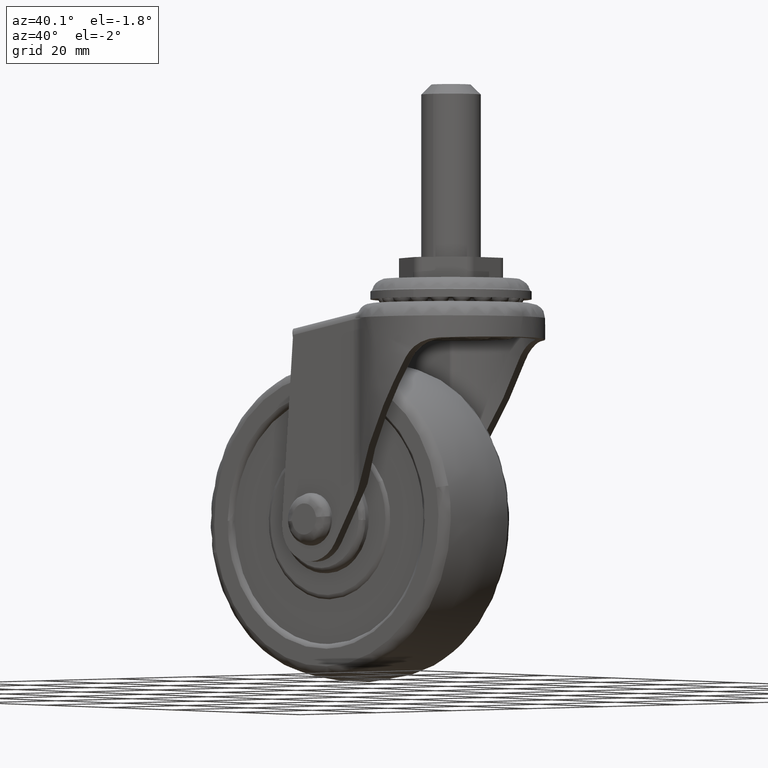
[diagram: clean part render]
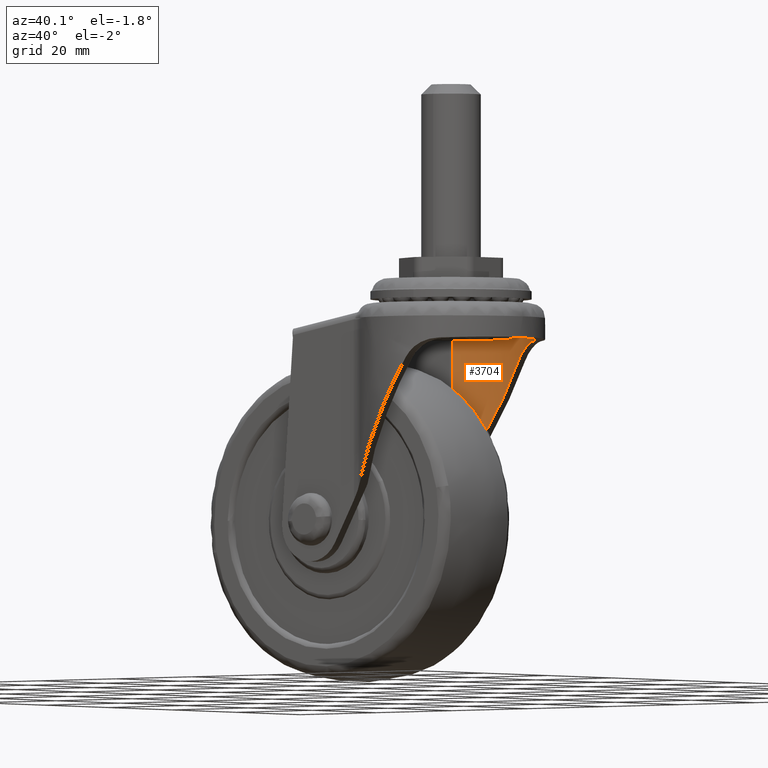
[diagram: same view with one face highlighted and labeled with its STEP entity id]
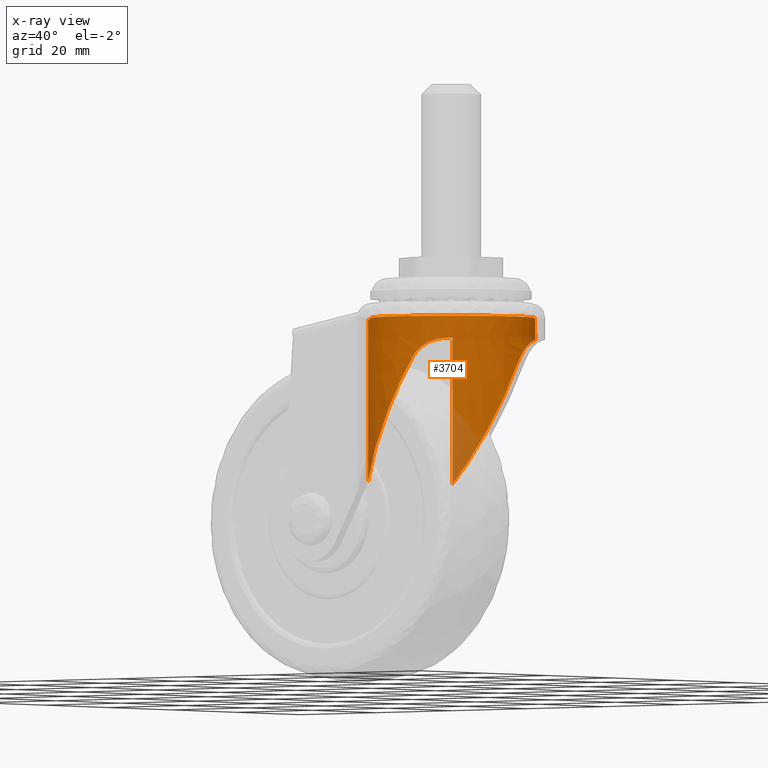
[diagram: x-ray of the same camera — body ghosted, the highlighted face saturated]
A machine part, auxiliary view. The second image highlights one B-rep face of the part: STEP entity #3704.
The next image is the same camera in x-ray: the body ghosted, the highlighted face saturated — about 9% of this face is hidden behind the body in this view.
In plain terms, the highlighted face is a freeform B-spline surface patch.
Its self-contained STEP definition (entity closure, byte-faithful):
#2291=CARTESIAN_POINT('',(15.783267568592700,-14.882382475620609,40.400002999999998));
#2292=VERTEX_POINT('',#2291);
#2323=CARTESIAN_POINT('',(40.998657751464712,-0.213622678029677,40.400003000654969));
#2324=VERTEX_POINT('',#2323);
#2338=CARTESIAN_POINT('',(40.998657751464712,-0.213622678029677,40.400003000654969));
#2339=CARTESIAN_POINT('',(40.985591467997722,-1.263695725326801,40.400003000642883));
#2340=CARTESIAN_POINT('',(40.821629055391050,-2.814096305306149,40.400003000622142));
#2341=CARTESIAN_POINT('',(40.229731342171377,-5.210059424436341,40.400003000583638));
#2342=CARTESIAN_POINT('',(39.440617197878012,-7.262308767320838,40.400003000545198));
#2343=CARTESIAN_POINT('',(38.356384595188921,-9.172857783376271,40.400003000502451));
#2344=CARTESIAN_POINT('',(37.146422826348228,-10.835948567004010,40.400003000460153));
#2345=CARTESIAN_POINT('',(35.507845873641280,-12.624448343244330,40.400003000409200));
#2346=CARTESIAN_POINT('',(33.332351017151979,-14.312193025136841,40.400003000345187));
#2347=CARTESIAN_POINT('',(31.106708741626729,-15.489472614647671,40.400003000291328));
#2348=CARTESIAN_POINT('',(28.972304991005561,-16.306903865790471,40.400003000239877));
#2349=CARTESIAN_POINT('',(26.879477862847200,-16.811985221237158,40.400003000192783));
#2350=CARTESIAN_POINT('',(24.056447446345469,-17.083466437720169,40.400003000136259));
#2351=CARTESIAN_POINT('',(21.262341985336288,-16.878019811067759,40.400003000082648));
#2352=CARTESIAN_POINT('',(18.296360715413758,-16.092903193674211,40.400003000038133));
#2353=CARTESIAN_POINT('',(16.622624774129360,-15.345887667322421,40.400003000004453));
#2354=CARTESIAN_POINT('',(15.783267568592700,-14.882382475620609,40.400002999999998));
#2355=B_SPLINE_CURVE_WITH_KNOTS('',3,(#2338,#2339,#2340,#2341,#2342,#2343,#2344,#2345,#2346,#2347,#2348,#2349,#2350,#2351,#2352,#2353,#2354),.UNSPECIFIED.,.F.,.U.,(4,1,1,1,1,1,1,1,1,1,1,1,1,1,4),(0.000000120514784,3.150436100331362,4.657181354784779,7.396698725017686,9.725302265213429,11.232038122234419,13.560667093424330,16.985089342365189,19.450577927836900,21.094306376480802,23.833815886325130,25.888472761522419,29.586833236782262,32.189383561543373,35.065871223317977),.UNSPECIFIED.);
#2356=EDGE_CURVE('',#2324,#2292,#2355,.T.);
#2384=CARTESIAN_POINT('',(15.783267568592260,14.882382475620370,40.400002999999998));
#2385=VERTEX_POINT('',#2384);
#2399=CARTESIAN_POINT('',(41.0,0.0,40.400002999999998));
#2400=VERTEX_POINT('',#2399);
#2401=CARTESIAN_POINT('',(15.783267568592260,14.882382475620370,40.400002999999998));
#2402=CARTESIAN_POINT('',(16.627734281012440,15.348676482606020,40.400003000000019));
#2403=CARTESIAN_POINT('',(18.648961376786289,16.249760866593700,40.400002999999842));
#2404=CARTESIAN_POINT('',(21.622185912074212,16.929714146220171,40.400003000000339));
#2405=CARTESIAN_POINT('',(24.153230415739252,17.036792260949419,40.400002999999501));
#2406=CARTESIAN_POINT('',(26.216868974343999,16.889863180575400,40.400003000001277));
#2407=CARTESIAN_POINT('',(28.255266089992251,16.517842758035862,40.400002999997682));
#2408=CARTESIAN_POINT('',(30.395888214698829,15.802725360686900,40.400003000000972));
#2409=CARTESIAN_POINT('',(32.548079063425817,14.757543642819730,40.400002999999522));
#2410=CARTESIAN_POINT('',(34.386382174932038,13.526924414051610,40.400002999999707));
#2411=CARTESIAN_POINT('',(36.069779446958172,12.027260608993879,40.400003000000439));
#2412=CARTESIAN_POINT('',(37.352328669002468,10.581159124978520,40.400002999999749));
#2413=CARTESIAN_POINT('',(38.594500577902409,8.811583015832159,40.400003000000048));
#2414=CARTESIAN_POINT('',(39.834227979941900,6.444263776050391,40.400003000000353));
#2415=CARTESIAN_POINT('',(40.775858022386672,3.399286899855855,40.400002999998883));
#2416=CARTESIAN_POINT('',(41.000123092290622,1.102471983810877,40.400003000001782));
#2417=CARTESIAN_POINT('',(41.0,0.0,40.400002999999998));
#2418=B_SPLINE_CURVE_WITH_KNOTS('',3,(#2401,#2402,#2403,#2404,#2405,#2406,#2407,#2408,#2409,#2410,#2411,#2412,#2413,#2414,#2415,#2416,#2417),.UNSPECIFIED.,.F.,.U.,(4,1,1,1,1,1,1,1,1,1,1,1,1,1,4),(0.000000113049971,2.893976345568198,6.614891212257788,9.095499665123370,10.473607797847070,12.816412495159289,15.296987927314790,17.226372345601359,19.982527512422841,21.911844762152921,23.979018167753349,25.770573645928611,28.388975643133399,31.972088632806841,35.279501267924793),.UNSPECIFIED.);
#2419=EDGE_CURVE('',#2385,#2400,#2418,.T.);
#2421=CARTESIAN_POINT('',(41.0,0.0,40.400002999999998));
#2422=CARTESIAN_POINT('',(41.0,-0.106815555868468,40.400003000327487));
#2423=CARTESIAN_POINT('',(40.998657751464705,-0.213622678029677,40.400003000654969));
#2431=(BOUNDED_CURVE()B_SPLINE_CURVE(2,(#2421,#2422,#2423),.UNSPECIFIED.,.F.,.U.)B_SPLINE_CURVE_WITH_KNOTS((3,3),(0.0,0.006325292492187),.UNSPECIFIED.)CURVE()GEOMETRIC_REPRESENTATION_ITEM()RATIONAL_B_SPLINE_CURVE((1.0,0.998335277705384,0.996712674832494))REPRESENTATION_ITEM(''));
#2432=EDGE_CURVE('',#2400,#2324,#2431,.T.);
#2773=CARTESIAN_POINT('',(13.302537420181221,13.212278166666680,7.495441232304141));
#2774=VERTEX_POINT('',#2773);
#2790=CARTESIAN_POINT('',(13.302537420181221,13.212278166666680,39.546999416662651));
#2791=VERTEX_POINT('',#2790);
#2792=CARTESIAN_POINT('',(13.302537420181221,13.212278166666680,39.546999416662651));
#2793=CARTESIAN_POINT('',(13.302537420181221,13.212278166666680,7.495441232304141));
#2794=QUASI_UNIFORM_CURVE('',1,(#2792,#2793),.UNSPECIFIED.,.F.,.U.);
#2795=EDGE_CURVE('',#2791,#2774,#2794,.T.);
#2836=CARTESIAN_POINT('',(13.302537420181199,-13.212278166666660,7.495441232304111));
#2837=VERTEX_POINT('',#2836);
#2858=CARTESIAN_POINT('',(13.302537420181199,-13.212278166666660,39.546999416663198));
#2859=VERTEX_POINT('',#2858);
#2873=CARTESIAN_POINT('',(13.302537420181199,-13.212278166666660,7.495441232304111));
#2874=CARTESIAN_POINT('',(13.302537420181199,-13.212278166666660,39.546999416663198));
#2875=QUASI_UNIFORM_CURVE('',1,(#2873,#2874),.UNSPECIFIED.,.F.,.U.);
#2876=EDGE_CURVE('',#2837,#2859,#2875,.T.);
#3048=CARTESIAN_POINT('',(27.732648456351200,-16.585154069266249,32.013543712851813));
#3049=VERTEX_POINT('',#3048);
#3050=CARTESIAN_POINT('',(13.302537420181199,-13.212278166666669,7.495441232304102));
#3051=CARTESIAN_POINT('',(19.700895489298766,-18.392777332158815,18.366847450360506));
#3052=CARTESIAN_POINT('',(27.732648456351239,-16.585154069266249,32.013543712851757));
#3060=(BOUNDED_CURVE()B_SPLINE_CURVE(2,(#3050,#3051,#3052),.UNSPECIFIED.,.F.,.U.)CURVE()GEOMETRIC_REPRESENTATION_ITEM()QUASI_UNIFORM_CURVE()RATIONAL_B_SPLINE_CURVE((1.0,0.900017110385924,1.0))REPRESENTATION_ITEM(''));
#3061=EDGE_CURVE('',#2837,#3049,#3060,.T.);
#3104=CARTESIAN_POINT('',(27.732648456351200,16.585154069266249,32.013543712851813));
#3105=VERTEX_POINT('',#3104);
#3106=CARTESIAN_POINT('',(27.732648456351232,16.585154069266249,32.013543712851742));
#3107=CARTESIAN_POINT('',(19.700895489298762,18.392777332158794,18.366847450360524));
#3108=CARTESIAN_POINT('',(13.302537420181221,13.212278166666680,7.495441232304126));
#3116=(BOUNDED_CURVE()B_SPLINE_CURVE(2,(#3106,#3107,#3108),.UNSPECIFIED.,.F.,.U.)CURVE()GEOMETRIC_REPRESENTATION_ITEM()QUASI_UNIFORM_CURVE()RATIONAL_B_SPLINE_CURVE((1.0,0.900017110385927,1.0))REPRESENTATION_ITEM(''));
#3117=EDGE_CURVE('',#3105,#2774,#3116,.T.);
#3309=CARTESIAN_POINT('',(34.344648461931499,-13.490302005480061,35.954223304817653));
#3310=VERTEX_POINT('',#3309);
#3318=CARTESIAN_POINT('',(34.344648461931499,13.490302005480061,35.954223304817653));
#3319=VERTEX_POINT('',#3318);
#3320=CARTESIAN_POINT('',(34.344648461931499,-13.490302005480061,35.954223304817653));
#3321=CARTESIAN_POINT('',(35.503922247318101,-12.601876665849730,35.994705924847523));
#3322=CARTESIAN_POINT('',(37.069160603942230,-11.043011229437701,36.049365100657369));
#3323=CARTESIAN_POINT('',(38.913689923748699,-8.314280504920550,36.113777304684412));
#3324=CARTESIAN_POINT('',(40.077771135672123,-5.798078898553004,36.154427803281223));
#3325=CARTESIAN_POINT('',(40.774160738564383,-3.117989819463267,36.178746196435497));
#3326=CARTESIAN_POINT('',(41.044518735487749,-0.611021666048642,36.188187279464941));
#3327=CARTESIAN_POINT('',(40.975002274013491,1.544945470992421,36.185759717890171));
#3328=CARTESIAN_POINT('',(40.624300309115633,3.752222129608780,36.173512969480157));
#3329=CARTESIAN_POINT('',(40.063420664343120,5.707756285423002,36.153926675173103));
#3330=CARTESIAN_POINT('',(39.175901485392792,7.759703087683167,36.122933908716149));
#3331=CARTESIAN_POINT('',(38.162273162294433,9.475655126686688,36.087537326155768));
#3332=CARTESIAN_POINT('',(36.609849465654740,11.510630914481469,36.033325646887413));
#3333=CARTESIAN_POINT('',(35.310624228353362,12.749863766185550,35.987955828061253));
#3334=CARTESIAN_POINT('',(34.344648461931499,13.490302005480061,35.954223304817653));
#3335=B_SPLINE_CURVE_WITH_KNOTS('',3,(#3320,#3321,#3322,#3323,#3324,#3325,#3326,#3327,#3328,#3329,#3330,#3331,#3332,#3333,#3334),.UNSPECIFIED.,.F.,.U.,(4,1,1,1,1,1,1,1,1,1,1,1,4),(0.000000293370807,4.383188212807010,6.574816295611985,9.862243624212237,12.662636947667870,14.854240164102819,17.411084228079648,19.115652435882289,21.550786652732409,23.498894610176709,25.812262231559941,27.516844049916369,31.169517299134831),.UNSPECIFIED.);
#3336=EDGE_CURVE('',#3310,#3319,#3335,.T.);
#3415=CARTESIAN_POINT('',(34.344648461931499,-13.490302005480061,35.954223304817653));
#3416=CARTESIAN_POINT('',(34.083420392070437,-13.690623142716589,35.944951478072660));
#3417=CARTESIAN_POINT('',(33.815900243117078,-13.883709156929189,35.922593056250463));
#3418=CARTESIAN_POINT('',(33.435156921317770,-14.141931240448759,35.870364896211818));
#3419=CARTESIAN_POINT('',(33.327888071533110,-14.212902158294600,35.853446555964517));
#3420=CARTESIAN_POINT('',(33.113145578251917,-14.351538922787819,35.815033564174257));
#3421=CARTESIAN_POINT('',(33.005573614061447,-14.419271553156580,35.793525675943791));
#3422=CARTESIAN_POINT('',(32.682372003501520,-14.617801990216410,35.721880719342103));
#3423=CARTESIAN_POINT('',(32.466254426254359,-14.743934152335740,35.664633060204821));
#3424=CARTESIAN_POINT('',(32.033381972136560,-14.984186657956419,35.529784773236123));
#3425=CARTESIAN_POINT('',(31.816625610394329,-15.098306607491949,35.452188318983168));
#3426=CARTESIAN_POINT('',(31.491574288508328,-15.260760466541059,35.319201919092883));
#3427=CARTESIAN_POINT('',(31.383238542074199,-15.313457029922050,35.272104399401201));
#3428=CARTESIAN_POINT('',(31.166702770880029,-15.415983852203549,35.172100961423403));
#3429=CARTESIAN_POINT('',(31.058490729346872,-15.465809080539630,35.119165211767957));
#3430=CARTESIAN_POINT('',(30.524415528585578,-15.705128876693539,34.842715036716051));
#3431=CARTESIAN_POINT('',(30.114255217914760,-15.867799105361550,34.581822506808557));
#3432=CARTESIAN_POINT('',(29.529716462796809,-16.076845647276571,34.128201119364697));
#3433=CARTESIAN_POINT('',(29.340007421168931,-16.140678919052650,33.966572799994779));
#3434=CARTESIAN_POINT('',(29.064040681546089,-16.228516341854409,33.707706373486531));
#3435=CARTESIAN_POINT('',(28.973218655159240,-16.256554422221090,33.618390079259314));
#3436=CARTESIAN_POINT('',(28.796295999126411,-16.309629633155570,33.435855859836693));
#3437=CARTESIAN_POINT('',(28.710154321538909,-16.334686518900199,33.342631773821580));
#3438=CARTESIAN_POINT('',(28.291026741623462,-16.453220924374239,32.866860998614321));
#3439=CARTESIAN_POINT('',(27.992516865614249,-16.526667739201450,32.455597218114519));
#3440=CARTESIAN_POINT('',(27.732648456351200,-16.585154069266249,32.013543712851813));
#3441=B_SPLINE_CURVE_WITH_KNOTS('',3,(#3415,#3416,#3417,#3418,#3419,#3420,#3421,#3422,#3423,#3424,#3425,#3426,#3427,#3428,#3429,#3430,#3431,#3432,#3433,#3434,#3435,#3436,#3437,#3438,#3439,#3440),.UNSPECIFIED.,.F.,.U.,(4,2,2,2,2,2,2,2,2,2,2,2,4),(0.823716418298800,0.843750000000001,0.851562500000001,0.859375000000001,0.875000000000001,0.890625000000001,0.898437500000001,0.906250000000001,0.937500000000000,0.953125000000000,0.960937500000000,0.968750000000000,1.0),.UNSPECIFIED.);
#3442=EDGE_CURVE('',#3310,#3049,#3441,.T.);
#3494=CARTESIAN_POINT('',(27.732648456351200,16.585154069266249,32.013543712851813));
#3495=CARTESIAN_POINT('',(27.991364945758850,16.526927138186519,32.453638385308913));
#3496=CARTESIAN_POINT('',(28.290189180776991,16.453517737618629,32.866302212283642));
#3497=CARTESIAN_POINT('',(28.798413304500482,16.309696190711861,33.442623586967123));
#3498=CARTESIAN_POINT('',(28.975127453283640,16.256843228738600,33.624429109964247));
#3499=CARTESIAN_POINT('',(29.341143483650981,16.140291805449170,33.967517550983317));
#3500=CARTESIAN_POINT('',(29.530578314146570,16.076557789743461,34.128944182296387));
#3501=CARTESIAN_POINT('',(29.921379996960841,15.936757944896110,34.432079796537593));
#3502=CARTESIAN_POINT('',(30.122748938388700,15.860693854218150,34.573786982296312));
#3503=CARTESIAN_POINT('',(30.381491855760430,15.756890056111869,34.738682597187257));
#3504=CARTESIAN_POINT('',(30.433592523214820,15.735692511136859,34.771048943427289));
#3505=CARTESIAN_POINT('',(30.538489213313490,15.692395842549409,34.834554884436749));
#3506=CARTESIAN_POINT('',(30.591346524094110,15.670270078994481,34.865728111598699));
#3507=CARTESIAN_POINT('',(30.750117373525399,15.602853645278060,34.956935432877678));
#3508=CARTESIAN_POINT('',(30.856430707784160,15.556443705999680,35.014787791361393));
#3509=CARTESIAN_POINT('',(31.389991558137542,15.316880844119879,35.289882319528481));
#3510=CARTESIAN_POINT('',(31.823139822209189,15.101228770722599,35.464872881768507));
#3511=CARTESIAN_POINT('',(32.368061335189971,14.798342959435370,35.633903565797297));
#3512=CARTESIAN_POINT('',(32.477224486664603,14.736097049935591,35.665209857054592));
#3513=CARTESIAN_POINT('',(32.695813804211227,14.608172636511760,35.722937171310093));
#3514=CARTESIAN_POINT('',(32.805279325376169,14.542460524012050,35.749353493894318));
#3515=CARTESIAN_POINT('',(33.130977350959348,14.341900644828630,35.820852765640701));
#3516=CARTESIAN_POINT('',(33.345516592231277,14.203054550886050,35.858484279640997));
#3517=CARTESIAN_POINT('',(33.824158715174832,13.877673273330069,35.923197649013403));
#3518=CARTESIAN_POINT('',(34.086673276623827,13.688126320308459,35.945056812088140));
#3519=CARTESIAN_POINT('',(34.344648461931499,13.490302005480061,35.954223304817653));
#3520=B_SPLINE_CURVE_WITH_KNOTS('',3,(#3494,#3495,#3496,#3497,#3498,#3499,#3500,#3501,#3502,#3503,#3504,#3505,#3506,#3507,#3508,#3509,#3510,#3511,#3512,#3513,#3514,#3515,#3516,#3517,#3518,#3519),.UNSPECIFIED.,.F.,.U.,(4,2,2,2,2,2,2,2,2,2,2,2,4),(0.0,0.031250000000000,0.046875000000001,0.062500000000001,0.078125000000002,0.082031250000002,0.085937500000002,0.093750000000002,0.125000000000001,0.132812500000001,0.140625000000002,0.156250000000002,0.175931107272836),.UNSPECIFIED.);
#3521=EDGE_CURVE('',#3105,#3319,#3520,.T.);
#3619=CARTESIAN_POINT('',(12.736407554863170,-12.733086241357849,41.222617044863739));
#3620=CARTESIAN_POINT('',(12.736407554863170,-12.733086241357849,6.652261836990122));
#3621=CARTESIAN_POINT('',(25.032606006792847,-23.610211029628239,41.222617044863732));
#3622=CARTESIAN_POINT('',(25.032606006792847,-23.610211029628239,6.652261836990122));
#3623=CARTESIAN_POINT('',(36.332235881858722,-11.701109270244270,41.222617044863739));
#3624=CARTESIAN_POINT('',(36.332235881858722,-11.701109270244270,6.652261836990122));
#3625=CARTESIAN_POINT('',(47.631865756924590,0.207992489139717,41.222617044863732));
#3626=CARTESIAN_POINT('',(47.631865756924590,0.207992489139717,6.652261836990122));
#3627=CARTESIAN_POINT('',(36.124370096123620,11.916360592572859,41.222617044863739));
#3628=CARTESIAN_POINT('',(36.124370096123620,11.916360592572859,6.652261836990122));
#3629=CARTESIAN_POINT('',(24.616874435322643,23.624728696005995,41.222617044863732));
#3630=CARTESIAN_POINT('',(24.616874435322643,23.624728696005995,6.652261836990122));
#3631=CARTESIAN_POINT('',(12.514032946520420,12.532859244656880,41.222617044863739));
#3632=CARTESIAN_POINT('',(12.514032946520420,12.532859244656880,6.652261836990122));
#3640=(BOUNDED_SURFACE()B_SPLINE_SURFACE(1,2,((#3619,#3621,#3623,#3625,#3627,#3629,#3631),(#3620,#3622,#3624,#3626,#3628,#3630,#3632)),.UNSPECIFIED.,.F.,.F.,.U.)B_SPLINE_SURFACE_WITH_KNOTS((2,2),(3,2,2,3),(0.0,34.570355207873618),(0.0,27.473783356790658,54.947566713581317,82.421350070371986),.UNSPECIFIED.)GEOMETRIC_REPRESENTATION_ITEM()RATIONAL_B_SPLINE_SURFACE(((1.0,0.719339800338651,1.0,0.719339800338651,1.0,0.719339800338651,1.0),(1.0,0.719339800338651,1.0,0.719339800338651,1.0,0.719339800338651,1.0)))REPRESENTATION_ITEM('')SURFACE());
#3641=ORIENTED_EDGE('',*,*,#2876,.T.);
#3642=CARTESIAN_POINT('',(13.225584374103599,-13.149599534603320,39.949014456658901));
#3643=VERTEX_POINT('',#3642);
#3644=CARTESIAN_POINT('',(13.302537420181199,-13.212278166666660,39.546999416663198));
#3645=CARTESIAN_POINT('',(13.302537420181171,-13.212278166666639,39.617220529746866));
#3646=CARTESIAN_POINT('',(13.296132157399880,-13.207099903090940,39.686004028126362));
#3647=CARTESIAN_POINT('',(13.270402832397270,-13.186205643135001,39.820661186851908));
#3648=CARTESIAN_POINT('',(13.250831427412050,-13.170286266922460,39.886815604583838));
#3649=CARTESIAN_POINT('',(13.225584374103461,-13.149599534603340,39.949014456658851));
#3650=B_SPLINE_CURVE_WITH_KNOTS('',3,(#3644,#3645,#3646,#3647,#3648,#3649),.UNSPECIFIED.,.F.,.U.,(4,2,4),(0.0,0.500000000000000,1.0),.UNSPECIFIED.);
#3651=EDGE_CURVE('',#2859,#3643,#3650,.T.);
#3652=ORIENTED_EDGE('',*,*,#3651,.T.);
#3653=CARTESIAN_POINT('',(13.225584374103610,-13.149599534603320,39.949014456658858));
#3654=CARTESIAN_POINT('',(14.425375017935012,-14.132674572492014,40.160569912761403));
#3655=CARTESIAN_POINT('',(15.783267568592720,-14.882382475620620,40.400003000000083));
#3663=(BOUNDED_CURVE()B_SPLINE_CURVE(2,(#3653,#3654,#3655),.UNSPECIFIED.,.F.,.U.)CURVE()GEOMETRIC_REPRESENTATION_ITEM()QUASI_UNIFORM_CURVE()RATIONAL_B_SPLINE_CURVE((1.0,0.995863295028004,1.0))REPRESENTATION_ITEM(''));
#3664=EDGE_CURVE('',#3643,#2292,#3663,.T.);
#3665=ORIENTED_EDGE('',*,*,#3664,.T.);
#3666=ORIENTED_EDGE('',*,*,#2356,.F.);
#3667=ORIENTED_EDGE('',*,*,#2432,.F.);
#3668=ORIENTED_EDGE('',*,*,#2419,.F.);
#3669=CARTESIAN_POINT('',(13.225584374103621,13.149599534603320,39.949014456658901));
#3670=VERTEX_POINT('',#3669);
#3671=CARTESIAN_POINT('',(13.225584374103610,13.149599534603320,39.949014456658858));
#3672=CARTESIAN_POINT('',(14.425375017934801,14.132674572491835,40.160569912761368));
#3673=CARTESIAN_POINT('',(15.783267568592240,14.882382475620361,40.400002999999998));
#3681=(BOUNDED_CURVE()B_SPLINE_CURVE(2,(#3671,#3672,#3673),.UNSPECIFIED.,.F.,.U.)CURVE()GEOMETRIC_REPRESENTATION_ITEM()QUASI_UNIFORM_CURVE()RATIONAL_B_SPLINE_CURVE((1.0,0.995863295027982,1.0))REPRESENTATION_ITEM(''));
#3682=EDGE_CURVE('',#3670,#2385,#3681,.T.);
#3683=ORIENTED_EDGE('',*,*,#3682,.F.);
#3684=CARTESIAN_POINT('',(13.225584374103621,13.149599534603320,39.949014456658901));
#3685=CARTESIAN_POINT('',(13.238184639922480,13.159923841482170,39.917972336210482));
#3686=CARTESIAN_POINT('',(13.249398210488820,13.169081815160990,39.885955883049483));
#3687=CARTESIAN_POINT('',(13.268679151765170,13.184798350497640,39.820656023612059));
#3688=CARTESIAN_POINT('',(13.284747937556830,13.197862377031900,39.754400574504650));
#3689=CARTESIAN_POINT('',(13.294438994756581,13.205717736625090,39.686256179298780));
#3690=CARTESIAN_POINT('',(13.300916523007430,13.210966282931309,39.617162561697093));
#3691=CARTESIAN_POINT('',(13.302537420181221,13.212278166666680,39.582055926907152));
#3692=CARTESIAN_POINT('',(13.302537420181221,13.212278166666680,39.546999416662651));
#3693=B_SPLINE_CURVE_WITH_KNOTS('',3,(#3684,#3685,#3686,#3687,#3688,#3689,#3690,#3691,#3692),.UNSPECIFIED.,.F.,.U.,(4,2,1,2,4),(0.0,0.250000000000000,0.500000000000000,0.750000000000000,1.0),.UNSPECIFIED.);
#3694=EDGE_CURVE('',#3670,#2791,#3693,.T.);
#3695=ORIENTED_EDGE('',*,*,#3694,.T.);
#3696=ORIENTED_EDGE('',*,*,#2795,.T.);
#3697=ORIENTED_EDGE('',*,*,#3117,.F.);
#3698=ORIENTED_EDGE('',*,*,#3521,.T.);
#3699=ORIENTED_EDGE('',*,*,#3336,.F.);
#3700=ORIENTED_EDGE('',*,*,#3442,.T.);
#3701=ORIENTED_EDGE('',*,*,#3061,.F.);
#3702=EDGE_LOOP('',(#3641,#3652,#3665,#3666,#3667,#3668,#3683,#3695,#3696,#3697,#3698,#3699,#3700,#3701));
#3703=FACE_OUTER_BOUND('',#3702,.T.);
#3704=ADVANCED_FACE('',(#3703),#3640,.F.);